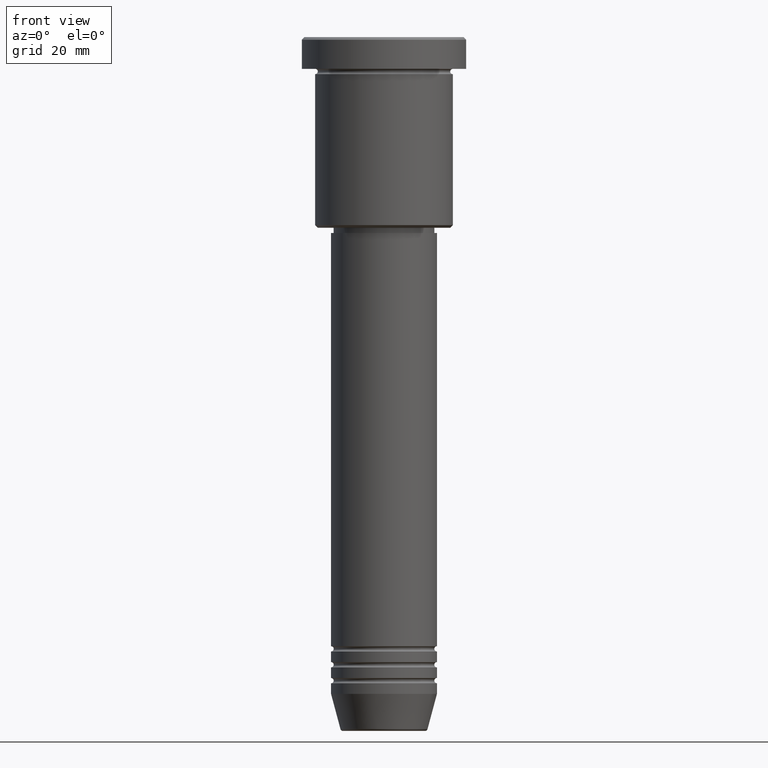
[diagram: clean part render]
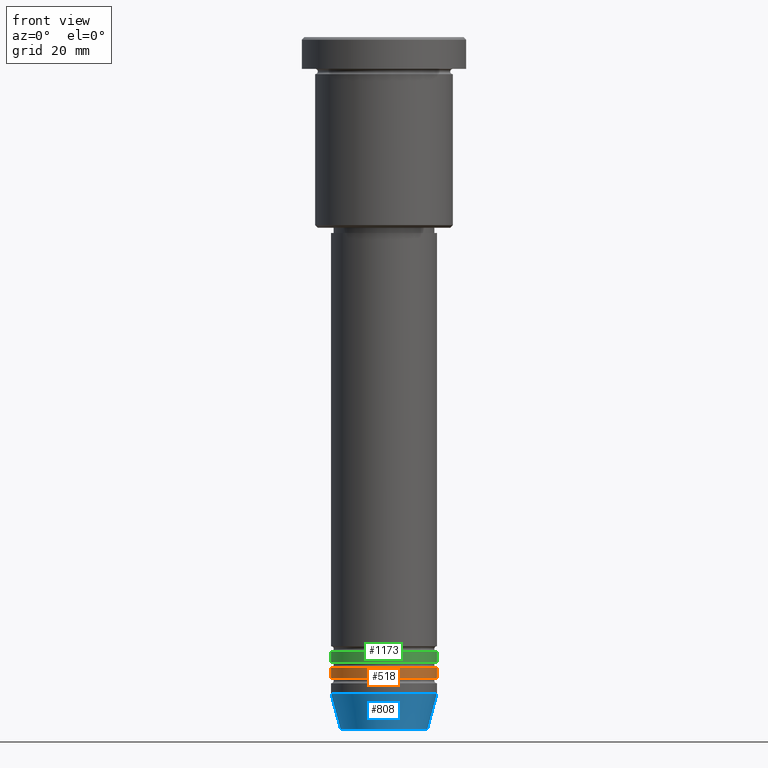
[diagram: same view with three faces highlighted in distinct colors, each labeled with its STEP entity id]
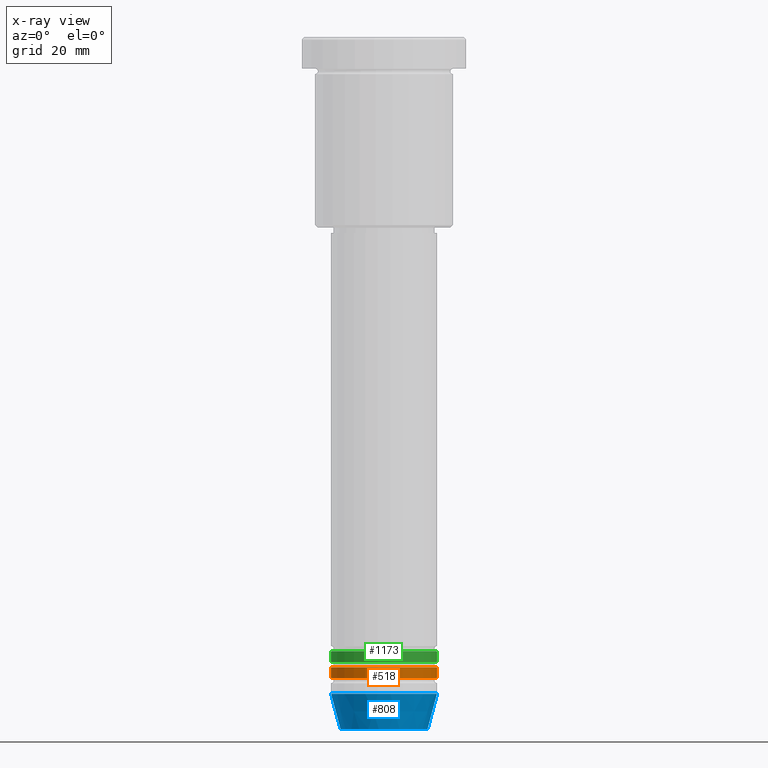
[diagram: x-ray of the same camera — body ghosted, the three highlighted faces saturated]
A machine part, front view with three faces highlighted in distinct colors.
The next image is the same camera in x-ray (body ghosted, the three faces saturated) — at least one of them is partly hidden behind the body in this view.
Their STEP definitions:

[orange] entity #518 — the highlighted cylindrical surface (partial cylindrical patch) has radius 10 mm, axis along (-0, -0, 1).
#33 = CARTESIAN_POINT ( 'NONE',  ( 0.000000000000000000, 0.000000000000000000, 0.000000000000000000 ) ) ;
#41 = EDGE_CURVE ( 'NONE', #749, #801, #391, .T. ) ;
#43 = DIRECTION ( 'NONE',  ( 1.000000000000000000, 0.000000000000000000, 0.000000000000000000 ) ) ;
#50 = VECTOR ( 'NONE', #752, 1000.000000000000000 ) ;
#84 = CIRCLE ( 'NONE', #462, 10.00000000000000000 ) ;
#134 = EDGE_CURVE ( 'NONE', #352, #733, #685, .T. ) ;
#183 = ORIENTED_EDGE ( 'NONE', *, *, #41, .T. ) ;
#227 = CARTESIAN_POINT ( 'NONE',  ( -10.00000000000000000, 1.224646799147353256E-15, 0.000000000000000000 ) ) ;
#253 = VECTOR ( 'NONE', #1133, 1000.000000000000000 ) ;
#266 = CARTESIAN_POINT ( 'NONE',  ( 0.000000000000000000, 0.000000000000000000, -118.9999999999999858 ) ) ;
#276 = CARTESIAN_POINT ( 'NONE',  ( 0.000000000000000000, 0.000000000000000000, -120.9999999999999716 ) ) ;
#312 = CIRCLE ( 'NONE', #348, 10.00000000000000000 ) ;
#313 = EDGE_CURVE ( 'NONE', #733, #801, #84, .T. ) ;
#348 = AXIS2_PLACEMENT_3D ( 'NONE', #276, #1169, #994 ) ;
#352 = VERTEX_POINT ( 'NONE', #1080 ) ;
#380 = CARTESIAN_POINT ( 'NONE',  ( 10.00000000000000000, 0.000000000000000000, -118.9999999999999858 ) ) ;
#391 = LINE ( 'NONE', #851, #50 ) ;
#399 = ORIENTED_EDGE ( 'NONE', *, *, #134, .F. ) ;
#462 = AXIS2_PLACEMENT_3D ( 'NONE', #266, #1170, #1001 ) ;
#518 = ADVANCED_FACE ( 'NONE', ( #1153 ), #858, .T. ) ;
#533 = ORIENTED_EDGE ( 'NONE', *, *, #657, .T. ) ;
#657 = EDGE_CURVE ( 'NONE', #352, #749, #312, .T. ) ;
#685 = LINE ( 'NONE', #227, #253 ) ;
#733 = VERTEX_POINT ( 'NONE', #810 ) ;
#749 = VERTEX_POINT ( 'NONE', #1082 ) ;
#752 = DIRECTION ( 'NONE',  ( -0.000000000000000000, -0.000000000000000000, 1.000000000000000000 ) ) ;
#799 = EDGE_LOOP ( 'NONE', ( #399, #533, #183, #1066 ) ) ;
#801 = VERTEX_POINT ( 'NONE', #380 ) ;
#810 = CARTESIAN_POINT ( 'NONE',  ( -10.00000000000000000, 1.224646799147353256E-15, -118.9999999999999858 ) ) ;
#851 = CARTESIAN_POINT ( 'NONE',  ( 10.00000000000000000, 0.000000000000000000, 0.000000000000000000 ) ) ;
#858 = CYLINDRICAL_SURFACE ( 'NONE', #1178, 10.00000000000000000 ) ;
#965 = DIRECTION ( 'NONE',  ( -0.000000000000000000, -0.000000000000000000, 1.000000000000000000 ) ) ;
#994 = DIRECTION ( 'NONE',  ( 1.000000000000000000, 0.000000000000000000, 0.000000000000000000 ) ) ;
#1001 = DIRECTION ( 'NONE',  ( 1.000000000000000000, 0.000000000000000000, 0.000000000000000000 ) ) ;
#1066 = ORIENTED_EDGE ( 'NONE', *, *, #313, .F. ) ;
#1080 = CARTESIAN_POINT ( 'NONE',  ( -10.00000000000000000, 1.224646799147353256E-15, -120.9999999999999716 ) ) ;
#1082 = CARTESIAN_POINT ( 'NONE',  ( 10.00000000000000000, 0.000000000000000000, -120.9999999999999716 ) ) ;
#1133 = DIRECTION ( 'NONE',  ( -0.000000000000000000, -0.000000000000000000, 1.000000000000000000 ) ) ;
#1153 = FACE_OUTER_BOUND ( 'NONE', #799, .T. ) ;
#1169 = DIRECTION ( 'NONE',  ( -0.000000000000000000, -0.000000000000000000, 1.000000000000000000 ) ) ;
#1170 = DIRECTION ( 'NONE',  ( -0.000000000000000000, -0.000000000000000000, 1.000000000000000000 ) ) ;
#1178 = AXIS2_PLACEMENT_3D ( 'NONE', #33, #965, #43 ) ;

[blue] entity #808 — the highlighted conical surface has half-angle 15 deg.
#1 = ORIENTED_EDGE ( 'NONE', *, *, #257, .F. ) ;
#65 = DIRECTION ( 'NONE',  ( -0.2588190451025213501, 3.169619151431772337E-17, 0.9659258262890680902 ) ) ;
#69 = CIRCLE ( 'NONE', #409, 8.223655072137191269 ) ;
#80 = CARTESIAN_POINT ( 'NONE',  ( -10.00000000000000000, 1.224646799147353256E-15, -124.0000000000000000 ) ) ;
#126 = EDGE_LOOP ( 'NONE', ( #1, #866, #943, #1081 ) ) ;
#153 = EDGE_CURVE ( 'NONE', #658, #280, #438, .T. ) ;
#193 = CONICAL_SURFACE ( 'NONE', #483, 10.00000000000000000, 0.2617993877991500740 ) ;
#207 = DIRECTION ( 'NONE',  ( 1.000000000000000000, 0.000000000000000000, 0.000000000000000000 ) ) ;
#239 = CARTESIAN_POINT ( 'NONE',  ( 8.223655072137191269, 0.000000000000000000, -130.6294095225512422 ) ) ;
#257 = EDGE_CURVE ( 'NONE', #491, #658, #811, .T. ) ;
#280 = VERTEX_POINT ( 'NONE', #887 ) ;
#300 = DIRECTION ( 'NONE',  ( -0.000000000000000000, -0.000000000000000000, 1.000000000000000000 ) ) ;
#319 = CARTESIAN_POINT ( 'NONE',  ( 0.000000000000000000, 0.000000000000000000, -124.0000000000000000 ) ) ;
#362 = DIRECTION ( 'NONE',  ( 1.000000000000000000, 0.000000000000000000, 0.000000000000000000 ) ) ;
#370 = FACE_OUTER_BOUND ( 'NONE', #126, .T. ) ;
#406 = CARTESIAN_POINT ( 'NONE',  ( 10.00000000000000000, 0.000000000000000000, -124.0000000000000000 ) ) ;
#409 = AXIS2_PLACEMENT_3D ( 'NONE', #908, #1067, #362 ) ;
#430 = DIRECTION ( 'NONE',  ( -0.000000000000000000, -0.000000000000000000, 1.000000000000000000 ) ) ;
#438 = CIRCLE ( 'NONE', #1177, 10.00000000000000000 ) ;
#483 = AXIS2_PLACEMENT_3D ( 'NONE', #1101, #300, #207 ) ;
#491 = VERTEX_POINT ( 'NONE', #1031 ) ;
#658 = VERTEX_POINT ( 'NONE', #80 ) ;
#683 = EDGE_CURVE ( 'NONE', #491, #890, #69, .T. ) ;
#808 = ADVANCED_FACE ( 'NONE', ( #370 ), #193, .T. ) ;
#811 = LINE ( 'NONE', #823, #822 ) ;
#822 = VECTOR ( 'NONE', #65, 1000.000000000000000 ) ;
#823 = CARTESIAN_POINT ( 'NONE',  ( -10.00000000000000000, 1.224646799147353256E-15, -124.0000000000000000 ) ) ;
#864 = VECTOR ( 'NONE', #1049, 1000.000000000000000 ) ;
#866 = ORIENTED_EDGE ( 'NONE', *, *, #683, .T. ) ;
#878 = EDGE_CURVE ( 'NONE', #890, #280, #1136, .T. ) ;
#887 = CARTESIAN_POINT ( 'NONE',  ( 10.00000000000000000, 0.000000000000000000, -124.0000000000000000 ) ) ;
#890 = VERTEX_POINT ( 'NONE', #239 ) ;
#908 = CARTESIAN_POINT ( 'NONE',  ( 0.000000000000000000, 0.000000000000000000, -130.6294095225512422 ) ) ;
#943 = ORIENTED_EDGE ( 'NONE', *, *, #878, .T. ) ;
#972 = DIRECTION ( 'NONE',  ( 1.000000000000000000, 0.000000000000000000, 0.000000000000000000 ) ) ;
#1031 = CARTESIAN_POINT ( 'NONE',  ( -8.223655072137191269, 1.115877042642912054E-15, -130.6294095225512422 ) ) ;
#1049 = DIRECTION ( 'NONE',  ( 0.2588190451025213501, 0.000000000000000000, 0.9659258262890680902 ) ) ;
#1067 = DIRECTION ( 'NONE',  ( -0.000000000000000000, -0.000000000000000000, 1.000000000000000000 ) ) ;
#1081 = ORIENTED_EDGE ( 'NONE', *, *, #153, .F. ) ;
#1101 = CARTESIAN_POINT ( 'NONE',  ( 0.000000000000000000, 0.000000000000000000, -124.0000000000000000 ) ) ;
#1136 = LINE ( 'NONE', #406, #864 ) ;
#1177 = AXIS2_PLACEMENT_3D ( 'NONE', #319, #430, #972 ) ;

[green] entity #1173 — the highlighted cylindrical surface (partial cylindrical patch) has radius 10 mm, axis along (-0, -0, 1).
#7 = DIRECTION ( 'NONE',  ( -0.000000000000000000, -0.000000000000000000, 1.000000000000000000 ) ) ;
#16 = VECTOR ( 'NONE', #574, 1000.000000000000000 ) ;
#39 = CARTESIAN_POINT ( 'NONE',  ( 10.00000000000000000, 0.000000000000000000, -115.9999999999999716 ) ) ;
#96 = CARTESIAN_POINT ( 'NONE',  ( 10.00000000000000000, 0.000000000000000000, 0.000000000000000000 ) ) ;
#155 = ORIENTED_EDGE ( 'NONE', *, *, #776, .F. ) ;
#174 = AXIS2_PLACEMENT_3D ( 'NONE', #978, #535, #892 ) ;
#197 = AXIS2_PLACEMENT_3D ( 'NONE', #627, #449, #817 ) ;
#221 = VERTEX_POINT ( 'NONE', #420 ) ;
#231 = EDGE_CURVE ( 'NONE', #359, #738, #404, .T. ) ;
#262 = FACE_OUTER_BOUND ( 'NONE', #666, .T. ) ;
#270 = CARTESIAN_POINT ( 'NONE',  ( -10.00000000000000000, 1.224646799147353256E-15, -117.9999999999999716 ) ) ;
#359 = VERTEX_POINT ( 'NONE', #270 ) ;
#404 = CIRCLE ( 'NONE', #704, 10.00000000000000000 ) ;
#414 = ORIENTED_EDGE ( 'NONE', *, *, #757, .T. ) ;
#420 = CARTESIAN_POINT ( 'NONE',  ( -10.00000000000000000, 1.224646799147353256E-15, -115.9999999999999716 ) ) ;
#449 = DIRECTION ( 'NONE',  ( -0.000000000000000000, -0.000000000000000000, 1.000000000000000000 ) ) ;
#472 = LINE ( 'NONE', #944, #844 ) ;
#535 = DIRECTION ( 'NONE',  ( -0.000000000000000000, -0.000000000000000000, 1.000000000000000000 ) ) ;
#556 = CYLINDRICAL_SURFACE ( 'NONE', #197, 10.00000000000000000 ) ;
#574 = DIRECTION ( 'NONE',  ( -0.000000000000000000, -0.000000000000000000, 1.000000000000000000 ) ) ;
#579 = ORIENTED_EDGE ( 'NONE', *, *, #696, .F. ) ;
#594 = VERTEX_POINT ( 'NONE', #39 ) ;
#627 = CARTESIAN_POINT ( 'NONE',  ( 0.000000000000000000, 0.000000000000000000, 0.000000000000000000 ) ) ;
#666 = EDGE_LOOP ( 'NONE', ( #155, #1002, #414, #579 ) ) ;
#696 = EDGE_CURVE ( 'NONE', #221, #594, #940, .T. ) ;
#704 = AXIS2_PLACEMENT_3D ( 'NONE', #720, #816, #1091 ) ;
#715 = CARTESIAN_POINT ( 'NONE',  ( 10.00000000000000000, 0.000000000000000000, -117.9999999999999716 ) ) ;
#720 = CARTESIAN_POINT ( 'NONE',  ( 0.000000000000000000, 0.000000000000000000, -117.9999999999999716 ) ) ;
#738 = VERTEX_POINT ( 'NONE', #715 ) ;
#757 = EDGE_CURVE ( 'NONE', #738, #594, #1019, .T. ) ;
#776 = EDGE_CURVE ( 'NONE', #359, #221, #472, .T. ) ;
#816 = DIRECTION ( 'NONE',  ( -0.000000000000000000, -0.000000000000000000, 1.000000000000000000 ) ) ;
#817 = DIRECTION ( 'NONE',  ( 1.000000000000000000, 0.000000000000000000, 0.000000000000000000 ) ) ;
#844 = VECTOR ( 'NONE', #7, 1000.000000000000000 ) ;
#892 = DIRECTION ( 'NONE',  ( 1.000000000000000000, 0.000000000000000000, 0.000000000000000000 ) ) ;
#940 = CIRCLE ( 'NONE', #174, 10.00000000000000000 ) ;
#944 = CARTESIAN_POINT ( 'NONE',  ( -10.00000000000000000, 1.224646799147353256E-15, 0.000000000000000000 ) ) ;
#978 = CARTESIAN_POINT ( 'NONE',  ( 0.000000000000000000, 0.000000000000000000, -115.9999999999999716 ) ) ;
#1002 = ORIENTED_EDGE ( 'NONE', *, *, #231, .T. ) ;
#1019 = LINE ( 'NONE', #96, #16 ) ;
#1091 = DIRECTION ( 'NONE',  ( 1.000000000000000000, 0.000000000000000000, 0.000000000000000000 ) ) ;
#1173 = ADVANCED_FACE ( 'NONE', ( #262 ), #556, .T. ) ;